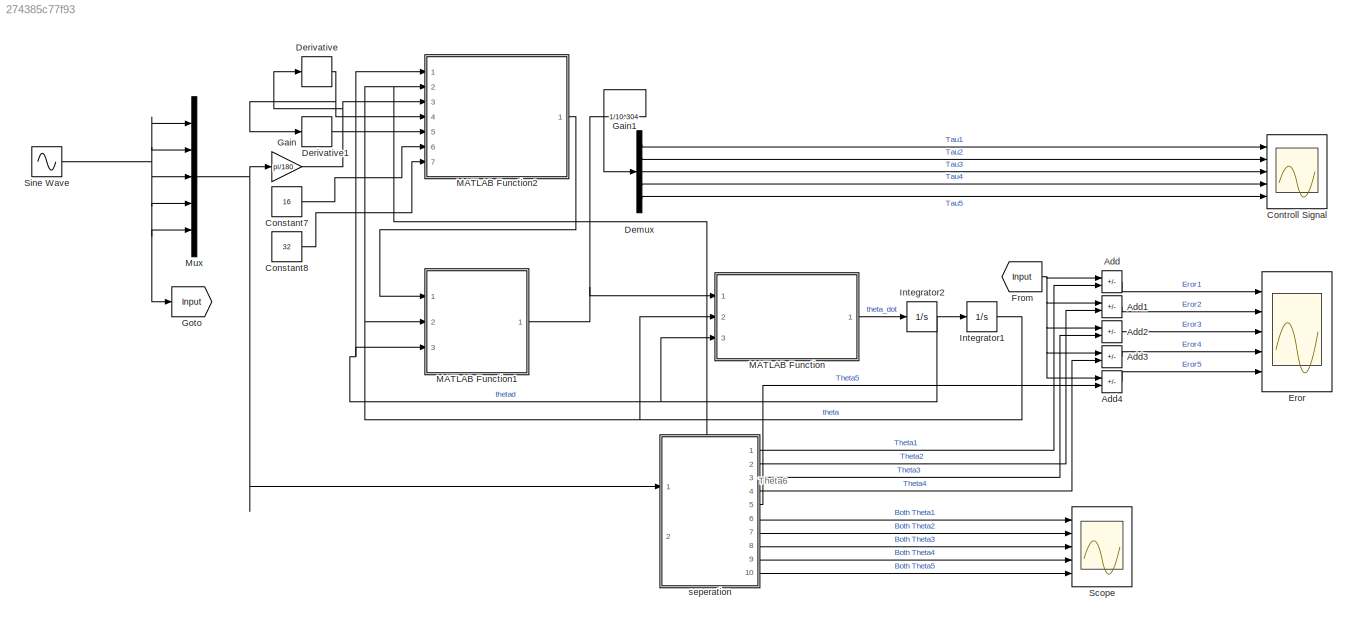
MODEL slx_274385c77f93
KIND model
CONFIG AbsTol = auto
CONFIG EnableMultiTasking = off
CONFIG FixedStep = 0.048
CONFIG MaxStep = 0.048
CONFIG MinStep = auto
CONFIG RelTol = 1e-5
CONFIG SampleTimeConstraint = Unconstrained
CONFIG SolverName = VariableStepAuto
CONFIG StartTime = 0.0
CONFIG StopTime = 10
BLOCK [Sum] Add
  IconShape = rectangular
  Inputs = +-
  Ports = [2, 1]
BLOCK [Sum] Add1
  IconShape = rectangular
  Inputs = +-
  Ports = [2, 1]
BLOCK [Sum] Add2
  IconShape = rectangular
  Inputs = +-
  Ports = [2, 1]
BLOCK [Sum] Add3
  IconShape = rectangular
  Inputs = +-
  Ports = [2, 1]
BLOCK [Sum] Add4
  IconShape = rectangular
  Inputs = +-
  Ports = [2, 1]
BLOCK [Constant] Constant7
  Value = 16
BLOCK [Constant] Constant8
  Value = 32
BLOCK [Scope] Controll Signal
  Floating = off
  NumInputPorts = 5
  Ports = [5]
  ScopeSpecificationString = Simulink.scopes.TimeScopeBlockCfg('CurrentConfiguration', extmgr.ConfigurationSet(extmgr.Configuration('Core','General UI',true,'FigureColor',[0 0 0]),extmgr.Configuration('Core','Source UI',true),extmgr.Configuration('Sources','WiredSimulink',true,'DataLoggingVariableName','ScopeData1'),extmgr.Configuration('Visuals','Time Domain',true,'SerializedDisplays',{struct('MinYLimReal','-59.65767','MaxYL...<+4993ch>
BLOCK [Demux] Demux
  Outputs = 5
  Ports = [1, 5]
BLOCK [Derivative] Derivative
BLOCK [Derivative] Derivative1
BLOCK [Scope] Eror
  Floating = off
  NumInputPorts = 5
  Ports = [5]
  ScopeSpecificationString = Simulink.scopes.TimeScopeBlockCfg('CurrentConfiguration', extmgr.ConfigurationSet(extmgr.Configuration('Core','General UI',true,'FigureColor',[0 0 0]),extmgr.Configuration('Core','Source UI',true),extmgr.Configuration('Sources','WiredSimulink',true,'DataLoggingVariableName','ScopeData2'),extmgr.Configuration('Visuals','Time Domain',true,'SerializedDisplays',{struct('MinYLimReal','-0.02987','MaxYLi...<+4974ch>
BLOCK [From] From
  GotoTag = Input
BLOCK [Gain] Gain
  Gain = pi/180
BLOCK [Gain] Gain1
  Gain = 1/10^304
BLOCK [Goto] Goto
  GotoTag = Input
BLOCK [Integrator] Integrator1
  InitialCondition = [0;0;0;0;0]
  Ports = [1, 1]
BLOCK [Integrator] Integrator2
  InitialCondition = [0;0;0;0;0]
  Ports = [1, 1]
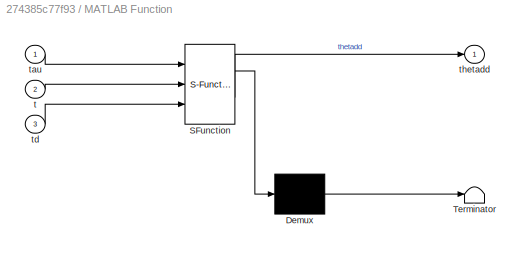
BLOCK [SubSystem] MATLAB Function
  ErrorFcn = Stateflow.Translate.translate
  PermitHierarchicalResolution = ExplicitOnly
  Ports = [3, 1]
  SFBlockType = MATLAB Function
  TreatAsAtomicUnit = on
BLOCK [Demux] MATLAB Function/ Demux 
  Outputs = 1
  Ports = [1, 1]
BLOCK [S-Function] MATLAB Function/ SFunction 
  EnableBusSupport = on
  FunctionName = sf_sfun
  PortCounts = [3 2]
  Ports = [3, 2]
  SFcnIsStateOwnerBlock = off
  SFunctionDeploymentMode = off
  Tag = Stateflow S-Function 3
BLOCK [Terminator] MATLAB Function/ Terminator 
BLOCK [Inport] MATLAB Function/t
  Port = 2
BLOCK [Inport] MATLAB Function/tau
BLOCK [Inport] MATLAB Function/td
  Port = 3
BLOCK [Outport] MATLAB Function/thetadd
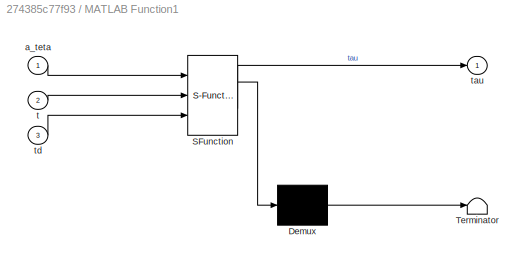
BLOCK [SubSystem] MATLAB Function1
  ErrorFcn = Stateflow.Translate.translate
  PermitHierarchicalResolution = ExplicitOnly
  Ports = [3, 1]
  SFBlockType = MATLAB Function
  TreatAsAtomicUnit = on
BLOCK [Demux] MATLAB Function1/ Demux 
  Outputs = 1
  Ports = [1, 1]
BLOCK [S-Function] MATLAB Function1/ SFunction 
  EnableBusSupport = on
  FunctionName = sf_sfun
  PortCounts = [3 2]
  Ports = [3, 2]
  SFcnIsStateOwnerBlock = off
  SFunctionDeploymentMode = off
  Tag = Stateflow S-Function 2
BLOCK [Terminator] MATLAB Function1/ Terminator 
BLOCK [Inport] MATLAB Function1/a_teta
BLOCK [Inport] MATLAB Function1/t
  Port = 2
BLOCK [Outport] MATLAB Function1/tau
BLOCK [Inport] MATLAB Function1/td
  Port = 3
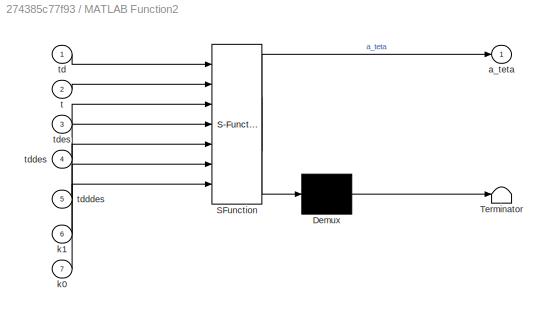
BLOCK [SubSystem] MATLAB Function2
  ErrorFcn = Stateflow.Translate.translate
  PermitHierarchicalResolution = ExplicitOnly
  Ports = [7, 1]
  SFBlockType = MATLAB Function
  TreatAsAtomicUnit = on
BLOCK [Demux] MATLAB Function2/ Demux 
  Outputs = 1
  Ports = [1, 1]
BLOCK [S-Function] MATLAB Function2/ SFunction 
  EnableBusSupport = on
  FunctionName = sf_sfun
  PortCounts = [7 2]
  Ports = [7, 2]
  SFcnIsStateOwnerBlock = off
  SFunctionDeploymentMode = off
  Tag = Stateflow S-Function 1
BLOCK [Terminator] MATLAB Function2/ Terminator 
BLOCK [Outport] MATLAB Function2/a_teta
BLOCK [Inport] MATLAB Function2/k0
  Port = 7
BLOCK [Inport] MATLAB Function2/k1
  Port = 6
BLOCK [Inport] MATLAB Function2/t
  Port = 2
BLOCK [Inport] MATLAB Function2/td
BLOCK [Inport] MATLAB Function2/tdddes
  Port = 5
BLOCK [Inport] MATLAB Function2/tddes
  Port = 4
BLOCK [Inport] MATLAB Function2/tdes
  Port = 3
BLOCK [Mux] Mux
  DisplayOption = bar
  Inputs = 5
  Ports = [5, 1]
BLOCK [Scope] Scope
  Floating = off
  NumInputPorts = 5
  Ports = [5]
  ScopeSpecificationString = Simulink.scopes.TimeScopeBlockCfg('CurrentConfiguration', extmgr.ConfigurationSet(extmgr.Configuration('Core','General UI',true,'FigureColor',[0 0 0]),extmgr.Configuration('Core','Source UI',true),extmgr.Configuration('Sources','WiredSimulink',true),extmgr.Configuration('Visuals','Time Domain',true,'SerializedDisplays',{struct('MinYLimReal','-1.25','MaxYLimReal','1.25','YLabelReal','','MinYLimMag'...<+5838ch>
BLOCK [Sin] Sine Wave
  Ports = [0, 1]
  SampleTime = 0
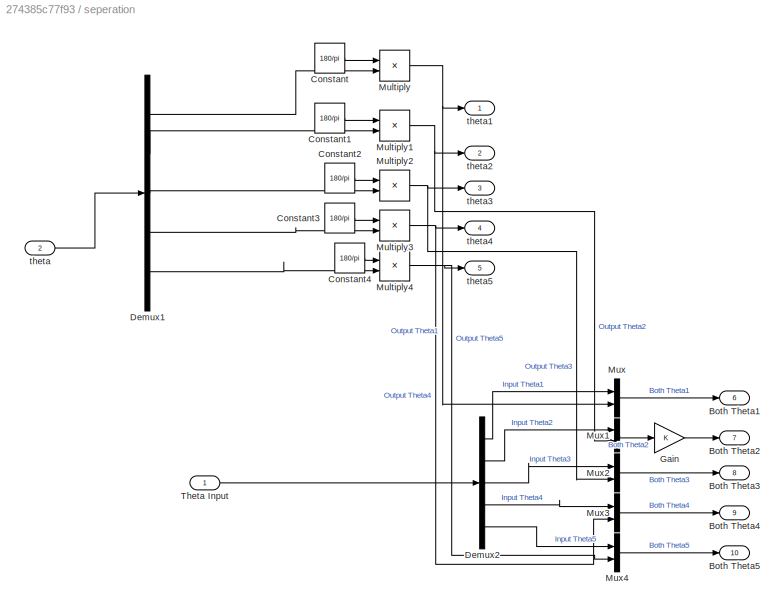
BLOCK [SubSystem] seperation
  PortSchema = {"entries":[{"content":{"sides":[{"content":{"connectorIds":["In1"]},"type":"ConnectorPlacement.EquallySpacedRectSide","uuid":"117984fd-d3d6-4145-babf-48c13158da12"},{"content":{"connectorIds":["Out1","Out2","Out3","Out4","Out5","Out6","Out7","Out8","Out9","Out10"],"side":"RIGHT"},"type":"ConnectorPlacement.EquallySpacedRectSide","uuid":"5922d531-a812-4762-9837-e12cfcbe2b47"},{"content":{"connecto...<+453ch>
  Ports = [2, 10]
BLOCK [Outport] seperation/Both Theta1
  Port = 6
BLOCK [Outport] seperation/Both Theta2
  Port = 7
BLOCK [Outport] seperation/Both Theta3
  Port = 8
BLOCK [Outport] seperation/Both Theta4
  Port = 9
BLOCK [Outport] seperation/Both Theta5
  Port = 10
BLOCK [Constant] seperation/Constant
  Value = 180/pi
BLOCK [Constant] seperation/Constant1
  Value = 180/pi
BLOCK [Constant] seperation/Constant2
  Value = 180/pi
BLOCK [Constant] seperation/Constant3
  Value = 180/pi
BLOCK [Constant] seperation/Constant4
  Value = 180/pi
BLOCK [Demux] seperation/Demux1
  Outputs = 5
  Ports = [1, 5]
BLOCK [Demux] seperation/Demux2
  Outputs = 5
  Ports = [1, 5]
BLOCK [Gain] seperation/Gain
BLOCK [Product] seperation/Multiply
  Ports = [2, 1]
BLOCK [Product] seperation/Multiply1
  Ports = [2, 1]
BLOCK [Product] seperation/Multiply2
  Ports = [2, 1]
BLOCK [Product] seperation/Multiply3
  Ports = [2, 1]
BLOCK [Product] seperation/Multiply4
  Ports = [2, 1]
BLOCK [Mux] seperation/Mux
  DisplayOption = bar
  Inputs = 2
  Ports = [2, 1]
BLOCK [Mux] seperation/Mux1
  DisplayOption = bar
  Inputs = 2
  Ports = [2, 1]
BLOCK [Mux] seperation/Mux2
  DisplayOption = bar
  Inputs = 2
  Ports = [2, 1]
BLOCK [Mux] seperation/Mux3
  DisplayOption = bar
  Inputs = 2
  Ports = [2, 1]
BLOCK [Mux] seperation/Mux4
  DisplayOption = bar
  Inputs = 2
  Ports = [2, 1]
BLOCK [Inport] seperation/Theta Input
BLOCK [Inport] seperation/theta
  Port = 2
BLOCK [Outport] seperation/theta1
BLOCK [Outport] seperation/theta2
  Port = 2
BLOCK [Outport] seperation/theta3
  Port = 3
BLOCK [Outport] seperation/theta4
  Port = 4
BLOCK [Outport] seperation/theta5
  Port = 5
ANNOTATION (root): Theta6
LINE Add1:1 -> Eror:2
LINE Add2:1 -> Eror:3
LINE Add3:1 -> Eror:4
LINE Add4:1 -> Eror:5
LINE Add:1 -> Eror:1
LINE Constant7:1 -> MATLAB Function2:6
LINE Constant8:1 -> MATLAB Function2:7
LINE Demux:1 -> Controll Signal:1
LINE Demux:2 -> Controll Signal:2
LINE Demux:3 -> Controll Signal:3
LINE Demux:4 -> Controll Signal:4
LINE Demux:5 -> Controll Signal:5
LINE Derivative1:1 -> MATLAB Function2:5
NET Derivative:1 -> Derivative1:1, MATLAB Function2:4
NET From:1 -> Add1:1, Add2:1, Add3:1, Add4:1, Add:1
LINE Gain1:1 -> Demux:1
NET Gain:1 -> Derivative:1, MATLAB Function2:3
NET Integrator1:1 -> MATLAB Function1:2, MATLAB Function2:2, MATLAB Function:2, seperation:2
NET Integrator2:1 -> Integrator1:1, MATLAB Function1:3, MATLAB Function2:1, MATLAB Function:3
NET MATLAB Function1:1 -> Gain1:1, MATLAB Function:1
LINE MATLAB Function2:1 -> MATLAB Function1:1
LINE MATLAB Function:1 -> Integrator2:1
NET Mux:1 -> Gain:1, seperation:1
NET Sine Wave:1 -> Goto:1, Mux:1, Mux:2, Mux:3, Mux:4, Mux:5
LINE seperation/Constant1:1 -> seperation/Multiply1:1
LINE seperation/Constant2:1 -> seperation/Multiply2:1
LINE seperation/Constant3:1 -> seperation/Multiply3:1
LINE seperation/Constant4:1 -> seperation/Multiply4:1
LINE seperation/Constant:1 -> seperation/Multiply:1
LINE seperation/Demux1:1 -> seperation/Multiply:2
LINE seperation/Demux1:2 -> seperation/Multiply1:2
LINE seperation/Demux1:3 -> seperation/Multiply2:2
LINE seperation/Demux1:4 -> seperation/Multiply3:2
LINE seperation/Demux1:5 -> seperation/Multiply4:2
LINE seperation/Demux2:1 -> seperation/Mux:1
LINE seperation/Demux2:2 -> seperation/Mux1:1
LINE seperation/Demux2:3 -> seperation/Mux2:1
LINE seperation/Demux2:4 -> seperation/Mux3:1
LINE seperation/Demux2:5 -> seperation/Mux4:1
LINE seperation/Gain:1 -> seperation/Both Theta2:1
NET seperation/Multiply1:1 -> seperation/Mux1:2, seperation/theta2:1
NET seperation/Multiply2:1 -> seperation/Mux2:2, seperation/theta3:1
NET seperation/Multiply3:1 -> seperation/Mux3:2, seperation/theta4:1
NET seperation/Multiply4:1 -> seperation/Mux4:2, seperation/theta5:1
NET seperation/Multiply:1 -> seperation/Mux:2, seperation/theta1:1
LINE seperation/Mux1:1 -> seperation/Gain:1
LINE seperation/Mux2:1 -> seperation/Both Theta3:1
LINE seperation/Mux3:1 -> seperation/Both Theta4:1
LINE seperation/Mux4:1 -> seperation/Both Theta5:1
LINE seperation/Mux:1 -> seperation/Both Theta1:1
LINE seperation/Theta Input:1 -> seperation/Demux2:1
LINE seperation/theta:1 -> seperation/Demux1:1
LINE seperation:1 -> Add:2
LINE seperation:10 -> Scope:5
LINE seperation:2 -> Add1:2
LINE seperation:3 -> Add2:2
LINE seperation:4 -> Add3:2
LINE seperation:5 -> Add4:2
LINE seperation:6 -> Scope:1
LINE seperation:7 -> Scope:2
LINE seperation:8 -> Scope:3
LINE seperation:9 -> Scope:4
note: NET lines group one-source signal fan-out (src -> all destinations, sorted); 1:1 wires keep LINE
CHART MATLAB Function2 states=1 transitions=1
  STATE_LABEL 'eML_blk_kernel()'
  STATE_LABEL 'SCRIPT:\nfunction a_teta = fcn(td,t,tdes,tddes,tdddes,k1,k0)\na_teta= tdddes+k1*(tddes-td)+k0*(tdes-t);\n\nreturn;\n'
CHART MATLAB Function1 states=1 transitions=1
  STATE_LABEL 'eML_blk_kernel()'
  STATE_LABEL 'SCRIPT:\nfunction tau  = fcn(a_teta, t, td)\ntheta1 = t(1); theta2 = t(2); theta3 = t(3); \ntheta4 = t(4); theta5 = t(5);  \n\nthetad1 = td(1); thetad2 = td(2); thetad3 = td(3);\nthetad4 = td(4); thetad5 = td(5); \n\nM=zeros(5);\nM(1,1) = 0.1666*cos(theta4) - 0.4018*sin(theta4) + 0.028*cos(theta4)*cos(theta5) - 1.12*cos(theta1)*sin(theta1) + 0.095452*cos(theta2)*sin(theta2) + 0.367108*cos(theta3)*sin(theta...<+3608ch>'
CHART MATLAB Function states=1 transitions=1
  STATE_LABEL 'eML_blk_kernel()'
  STATE_LABEL 'SCRIPT:\nfunction thetadd  = fcn(tau, t, td)\ntheta1 = t(1); theta2 = t(2); theta3 = t(3); \ntheta4 = t(4); theta5 = t(5);  \n\nthetad1 = td(1); thetad2 = td(2); thetad3 = td(3);\nthetad4 = td(4); thetad5 = td(5); \n\nM=zeros(5);\nM(1,1) = 0.1666*cos(theta4) - 0.4018*sin(theta4) + 0.028*cos(theta4)*cos(theta5) - 1.12*cos(theta1)*sin(theta1) + 0.095452*cos(theta2)*sin(theta2) + 0.367108*cos(theta3)*sin(thet...<+3608ch>'
CHART  states=0 transitions=0
CHART  states=0 transitions=0
CHART  states=0 transitions=0
